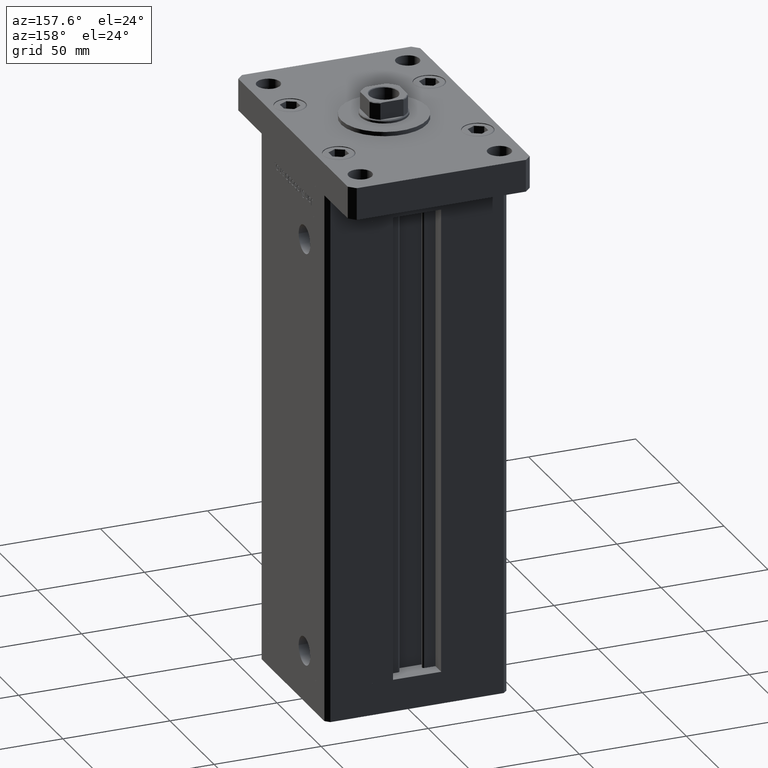
[diagram: clean part render]
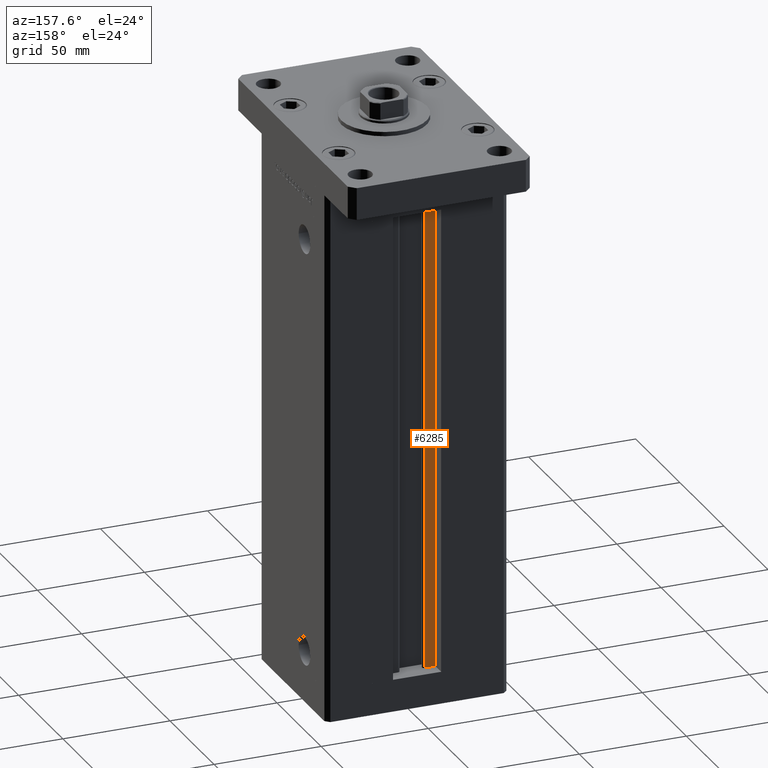
[diagram: same view with one face highlighted and labeled with its STEP entity id]
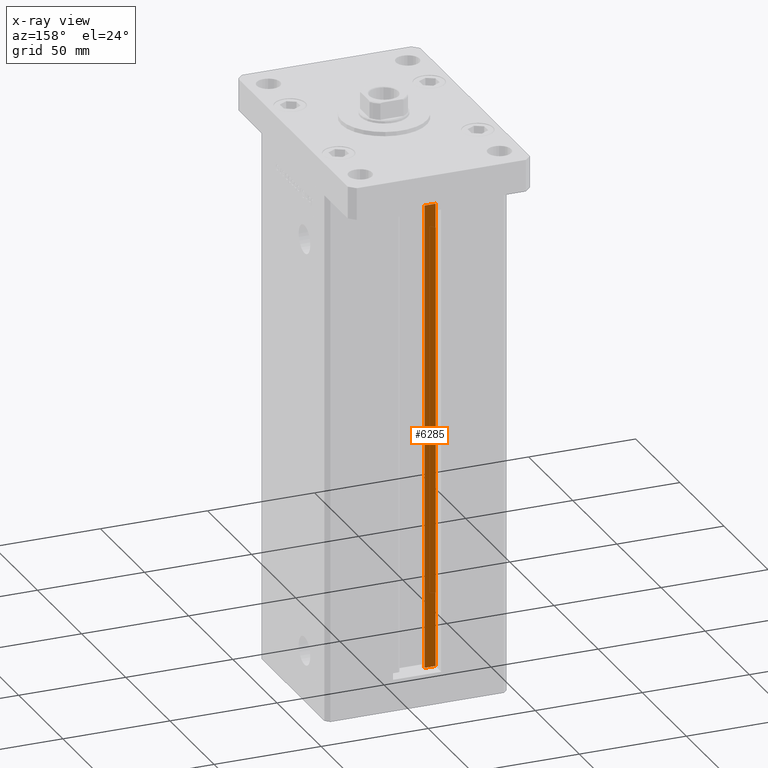
[diagram: x-ray of the same camera — body ghosted, the highlighted face saturated]
A machine part, auxiliary view. The second image highlights one B-rep face of the part: STEP entity #6285.
The next image is the same camera in x-ray: the body ghosted, the highlighted face saturated — about 1% of this face is hidden behind the body in this view.
In plain terms, the highlighted planar face has unit normal (0, -1, 0).
Its self-contained STEP definition (entity closure, byte-faithful):
#1263 = EDGE_LOOP ( 'NONE', ( #33829, #39753, #2881, #39793 ) ) ;
#2162 = CARTESIAN_POINT ( 'NONE',  ( -6.183333333333999704, 30.99999999999999289, 218.5000000000000000 ) ) ;
#2383 = VECTOR ( 'NONE', #37494, 1000.000000000000000 ) ;
#2881 = ORIENTED_EDGE ( 'NONE', *, *, #46619, .T. ) ;
#4247 = DIRECTION ( 'NONE',  ( 0.000000000000000000, 0.000000000000000000, -1.000000000000000000 ) ) ;
#5076 = VERTEX_POINT ( 'NONE', #2162 ) ;
#6220 = VECTOR ( 'NONE', #22285, 1000.000000000000000 ) ;
#6284 = LINE ( 'NONE', #14696, #6220 ) ;
#6285 = ADVANCED_FACE ( 'NONE', ( #7516 ), #36495, .F. ) ;
#7516 = FACE_OUTER_BOUND ( 'NONE', #1263, .T. ) ;
#8035 = LINE ( 'NONE', #36759, #16136 ) ;
#11321 = CARTESIAN_POINT ( 'NONE',  ( -6.183333333333999704, 30.99999999999999289, 0.000000000000000000 ) ) ;
#14696 = CARTESIAN_POINT ( 'NONE',  ( 0.000000000000000000, 30.99999999999999289, 218.5000000000000000 ) ) ;
#15017 = DIRECTION ( 'NONE',  ( -0.000000000000000000, -0.000000000000000000, 1.000000000000000000 ) ) ;
#16136 = VECTOR ( 'NONE', #24576, 1000.000000000000000 ) ;
#22285 = DIRECTION ( 'NONE',  ( -1.000000000000000000, 0.000000000000000000, 0.000000000000000000 ) ) ;
#22296 = CARTESIAN_POINT ( 'NONE',  ( -11.25000000000000000, 30.99999999999999289, 218.5000000000000000 ) ) ;
#23601 = VECTOR ( 'NONE', #15017, 1000.000000000000000 ) ;
#23746 = EDGE_CURVE ( 'NONE', #5076, #44845, #6284, .T. ) ;
#24576 = DIRECTION ( 'NONE',  ( -0.000000000000000000, -0.000000000000000000, 1.000000000000000000 ) ) ;
#25243 = CARTESIAN_POINT ( 'NONE',  ( -6.183333333333999704, 30.99999999999999289, 0.000000000000000000 ) ) ;
#26044 = EDGE_CURVE ( 'NONE', #45145, #5076, #39958, .T. ) ;
#28071 = AXIS2_PLACEMENT_3D ( 'NONE', #11321, #28376, #4247 ) ;
#28376 = DIRECTION ( 'NONE',  ( 0.000000000000000000, -1.000000000000000000, -0.000000000000000000 ) ) ;
#33829 = ORIENTED_EDGE ( 'NONE', *, *, #26044, .F. ) ;
#35093 = CARTESIAN_POINT ( 'NONE',  ( -11.25000000000000000, 30.99999999999999289, 0.000000000000000000 ) ) ;
#36495 = PLANE ( 'NONE',  #28071 ) ;
#36684 = CARTESIAN_POINT ( 'NONE',  ( -6.183333333333999704, 30.99999999999999289, 0.000000000000000000 ) ) ;
#36759 = CARTESIAN_POINT ( 'NONE',  ( -11.25000000000000000, 30.99999999999999289, 0.000000000000000000 ) ) ;
#37494 = DIRECTION ( 'NONE',  ( 1.000000000000000000, -0.000000000000000000, -0.000000000000000000 ) ) ;
#39692 = CARTESIAN_POINT ( 'NONE',  ( -6.183333333333999704, 30.99999999999999289, 0.000000000000000000 ) ) ;
#39753 = ORIENTED_EDGE ( 'NONE', *, *, #44775, .F. ) ;
#39793 = ORIENTED_EDGE ( 'NONE', *, *, #23746, .F. ) ;
#39958 = LINE ( 'NONE', #39692, #23601 ) ;
#41034 = LINE ( 'NONE', #36684, #2383 ) ;
#44775 = EDGE_CURVE ( 'NONE', #45442, #45145, #41034, .T. ) ;
#44845 = VERTEX_POINT ( 'NONE', #22296 ) ;
#45145 = VERTEX_POINT ( 'NONE', #25243 ) ;
#45442 = VERTEX_POINT ( 'NONE', #35093 ) ;
#46619 = EDGE_CURVE ( 'NONE', #45442, #44845, #8035, .T. ) ;